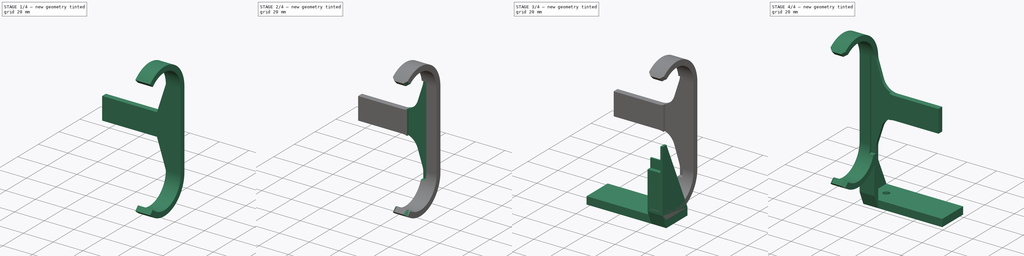
[diagram: build sequence overview — one tinted view per stage of 4, left to right]
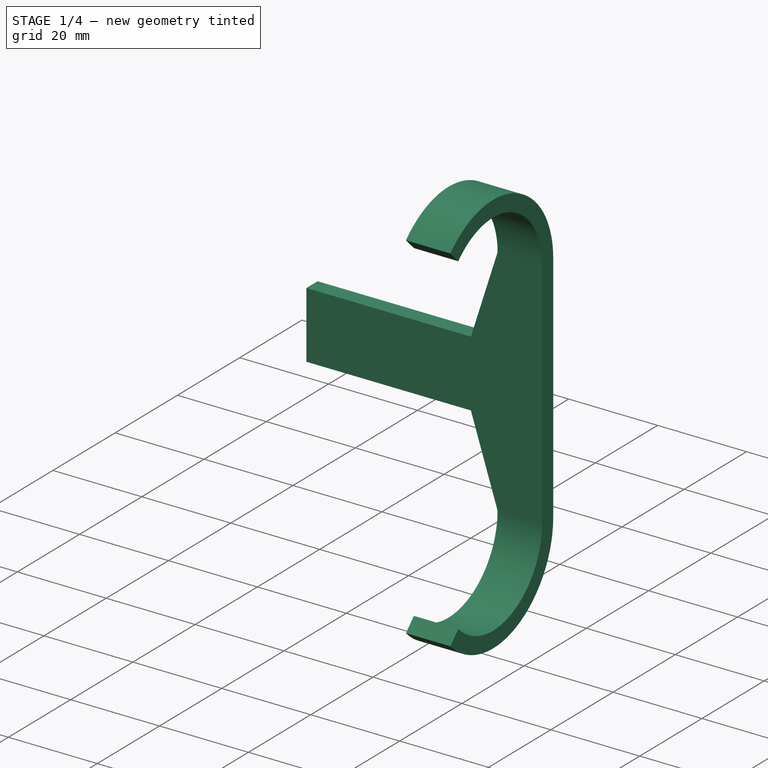
[diagram: stage 1 of 4 — iso view after this stage's code; geometry added in this stage tinted green]
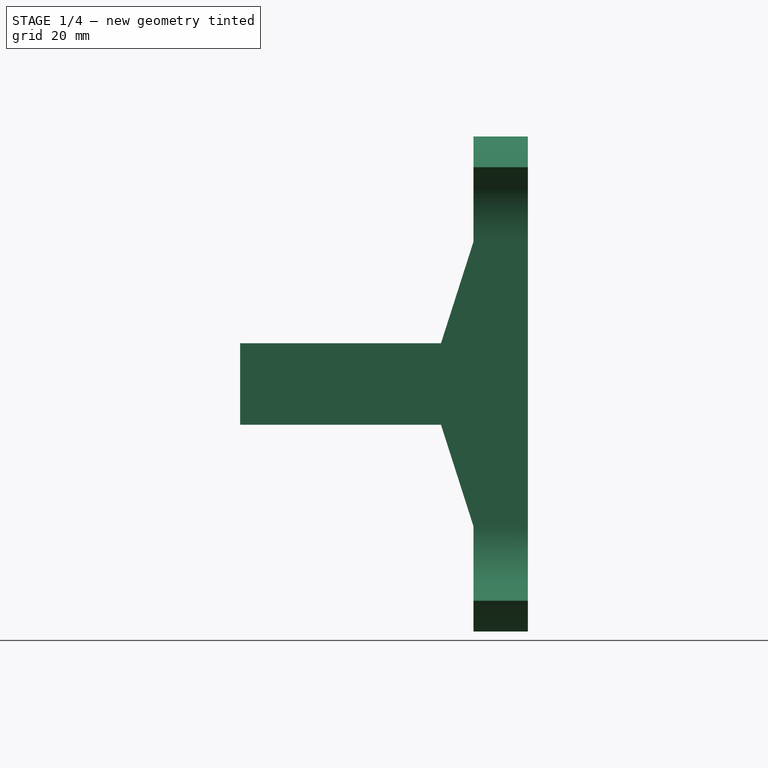
[diagram: stage 1 of 4 — front view after this stage's code; geometry added in this stage tinted green]
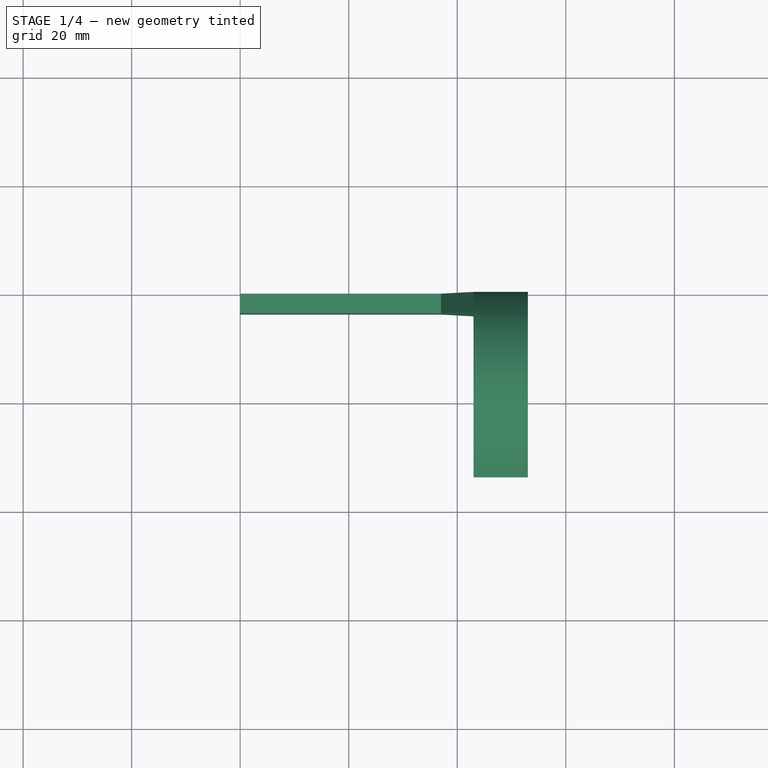
[diagram: stage 1 of 4 — top view after this stage's code; geometry added in this stage tinted green]
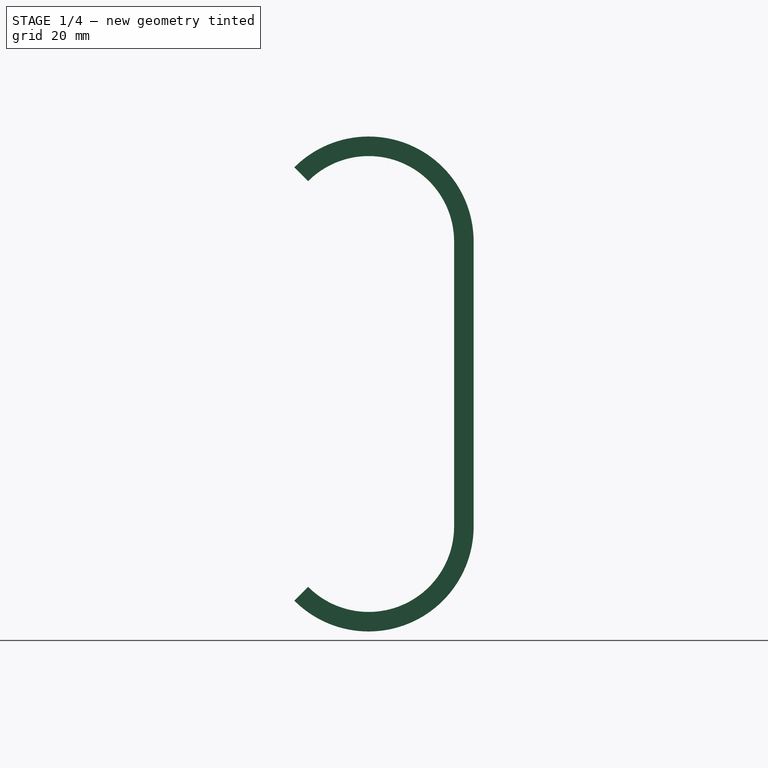
[diagram: stage 1 of 4 — right view after this stage's code; geometry added in this stage tinted green]
FCSTD DOCUMENT  (FreeCAD 0.20R29603 (Git))
Label: Travel_Router
License: All rights reserved
LicenseURL: http://en.wikipedia.org/wiki/All_rights_reserved
objects: Sketcher::SketchObject×6, PartDesign::Pad×4, PartDesign::Body×3, PartDesign::Pocket×2, PartDesign::Chamfer×2, PartDesign::Fillet×1, Part::FeaturePython×1, PartDesign::FeatureBase×1, Part::Mirroring×1, App::Part×1
note: 30 computed .brp shape members not serialized (recipe doc carries the construction recipe); baked Part::Feature solids carry a one-line shape summary decoded from their .brp

FEATURE [Sketcher::SketchObject] Sketch
  FullyConstrained = true
  MapMode = 5
  Placement = pos=(0,0,0) rot=(0.57735,0.57735,0.57735;2.0944rad)
  Support = -> [YZ_Plane001]
  sketch-geometry (19):
    g0: LineSegment StartX=-15.75 StartY=19.35 StartZ=0 EndX=15.75 EndY=19.35 EndZ=0
    g1: ArcOfCircle CenterX=0 CenterY=19.35 CenterZ=0 NormalX=0 NormalY=0 NormalZ=1 AngleXU=0 Radius=15.75 StartAngle=3.14159 EndAngle=6.28319
    g2: LineSegment StartX=-15.75 StartY=71.85 StartZ=0 EndX=15.75 EndY=71.85 EndZ=0
    g3: ArcOfCircle CenterX=4e-16 CenterY=71.85 CenterZ=0 NormalX=0 NormalY=0 NormalZ=1 AngleXU=0 Radius=15.75 StartAngle=0 EndAngle=3.14159
    g4: LineSegment StartX=15.75 StartY=71.85 StartZ=0 EndX=15.75 EndY=19.35 EndZ=0
    g5: LineSegment StartX=-15.75 StartY=71.85 StartZ=0 EndX=-15.75 EndY=19.35 EndZ=0
    g6: LineSegment StartX=0 StartY=87.6 StartZ=0 EndX=0 EndY=3.6 EndZ=0
    g7: ArcOfCircle CenterX=4e-16 CenterY=71.85 CenterZ=0 NormalX=0 NormalY=0 NormalZ=1 AngleXU=0 Radius=15.75 StartAngle=-9e-16 EndAngle=2.35619
    g8: ArcOfCircle CenterX=0 CenterY=19.35 CenterZ=0 NormalX=0 NormalY=0 NormalZ=1 AngleXU=0 Radius=15.75 StartAngle=3.92699 EndAngle=6.28319
    g9: LineSegment StartX=15.75 StartY=71.85 StartZ=0 EndX=15.75 EndY=19.35 EndZ=0
    g10: ArcOfCircle CenterX=4e-16 CenterY=71.85 CenterZ=0 NormalX=0 NormalY=0 NormalZ=1 AngleXU=0 Radius=19.35 StartAngle=0 EndAngle=2.35619
    g11: ArcOfCircle CenterX=0 CenterY=19.35 CenterZ=0 NormalX=0 NormalY=0 NormalZ=1 AngleXU=0 Radius=19.35 StartAngle=3.92699 EndAngle=6.28319
    g12: LineSegment StartX=19.35 StartY=71.85 StartZ=0 EndX=19.35 EndY=19.35 EndZ=0
    g13: LineSegment StartX=-11.1369 StartY=82.9869 StartZ=0 EndX=-13.6825 EndY=85.5325 EndZ=0
    g14: LineSegment StartX=-11.1369 StartY=8.21307 StartZ=0 EndX=-13.6825 EndY=5.66748 EndZ=0
    g15: LineSegment StartX=-11.1369 StartY=8.21307 StartZ=0 EndX=0 EndY=19.35 EndZ=0
    g16: LineSegment StartX=4e-16 StartY=71.85 StartZ=0 EndX=-11.1369 EndY=82.9869 EndZ=0
    g17: LineSegment StartX=15.75 StartY=71.85 StartZ=0 EndX=19.35 EndY=71.85 EndZ=0
    g18: LineSegment StartX=15.75 StartY=19.35 StartZ=0 EndX=19.35 EndY=19.35 EndZ=0
  constraints (52):
    c: Horizontal(g0)
    c: Distance(g0) = 31.5
    c: PointOnObject(g1,g0)
    c: Coincident(g1,g0)
    c: Coincident(g1,g0)
    c: PointOnObject(g1,g-2)
    c: Horizontal(g2)
    c: PointOnObject(g3,g2)
    c: Coincident(g3,g2)
    c: Coincident(g3,g2)
    c: Coincident(g4,g3)
    c: Coincident(g4,g1)
    c: Vertical(g4)
    c: Coincident(g5,g3)
    c: Coincident(g5,g1)
    c: Vertical(g5)
    c: PointOnObject(g6,g3)
    c: PointOnObject(g6,g1)
    c: Vertical(g6)
    c: PointOnObject(g1,g6)
    c: Distance(g6) = 84
    c: Coincident(g7,g3)
    c: Coincident(g7,g2)
    c: Coincident(g8,g1)
    c: Coincident(g8,g0)
    c: Coincident(g9,g7)
    c: Coincident(g9,g8)
    c: Coincident(g10,g7)
    c: Coincident(g11,g8)
    c: Coincident(g12,g10)
    c: Coincident(g12,g11)
    c: Vertical(g12)
    c: Coincident(g13,g7)
    c: Coincident(g13,g10)
    c: Coincident(g14,g8)
    c: Coincident(g14,g11)
    c: Coincident(g15,g8)
    c: Coincident(g15,g8)
    c: Coincident(g16,g7)
    c: Coincident(g16,g7)
    c: Parallel(g16,g13)
    c: Parallel(g15,g14)
    c: Coincident(g17,g7)
    c: Coincident(g17,g10)
    c: Coincident(g18,g8)
    c: Coincident(g18,g11)
    c: Horizontal(g18)
    c: Horizontal(g17)
    c: Angle(g16,g6) = 2.35619
    c: Angle(g6,g15) = 2.35619
    c: Distance(g17) = 3.6
    c: PointOnObject(g-1,g11)
FEATURE [PartDesign::Pad] Pad
  Direction = (1,-2e-16,3e-16)
  Length = 53
  Length2 = 10
  Placement = pos=(0,0,0) rot=(0.57735,0.57735,0.57735;2.0944rad)
  Profile = -> Sketch
  ReferenceAxis = -> Sketch [N_Axis]
  Type = 0
FEATURE [Sketcher::SketchObject] Sketch001
  FullyConstrained = true
  MapMode = 5
  Placement = pos=(0,0,0) rot=(1,0,0;1.5708rad)
  Support = -> [XZ_Plane001]
  expr: Constraints[24] = 84 + 2 * 3.6
  sketch-geometry (9):
    g0: LineSegment StartX=0 StartY=38.1 StartZ=0 EndX=0 EndY=0 EndZ=0
    g1: LineSegment StartX=0 StartY=0 StartZ=0 EndX=43 EndY=0 EndZ=0
    g2: LineSegment StartX=43 StartY=0 StartZ=0 EndX=43 EndY=38.1 EndZ=0
    g3: LineSegment StartX=43 StartY=38.1 StartZ=0 EndX=0 EndY=38.1 EndZ=0
    g4: LineSegment StartX=0 StartY=53.1 StartZ=0 EndX=43 EndY=53.1 EndZ=0
    g5: LineSegment StartX=43 StartY=53.1 StartZ=0 EndX=43 EndY=91.2 EndZ=0
    g6: LineSegment StartX=43 StartY=91.2 StartZ=0 EndX=0 EndY=91.2 EndZ=0
    g7: LineSegment StartX=0 StartY=91.2 StartZ=0 EndX=0 EndY=53.1 EndZ=0
    g8: LineSegment StartX=43 StartY=53.1 StartZ=0 EndX=43 EndY=38.1 EndZ=0
  constraints (25):
    c: Vertical(g0)
    c: Coincident(g1,g0)
    c: Horizontal(g1)
    c: Coincident(g2,g1)
    c: Vertical(g2)
    c: Coincident(g3,g2)
    c: Coincident(g3,g0)
    c: Horizontal(g3)
    c: Distance(g1) = 43
    c: Coincident(g0,g-1)
    c: Coincident(g4,g5)
    c: Coincident(g5,g6)
    c: Coincident(g6,g7)
    c: Coincident(g7,g4)
    c: Horizontal(g4)
    c: Horizontal(g6)
    c: Vertical(g5)
    c: Vertical(g7)
    c: PointOnObject(g4,g-2)
    c: Coincident(g8,g4)
    c: Coincident(g8,g2)
    c: Vertical(g8)
    c: Equal(g5,g2)
    c: Distance(g8) = 15
    c: DistanceY(g0,g6) = 91.2
FEATURE [PartDesign::Pocket] Pocket
  BaseFeature = -> Pad
  Direction = (0,1,2e-16)
  Length = 5
  Length2 = 5
  Midplane = true
  Placement = pos=(0,0,0) rot=(0.57735,0.57735,0.57735;2.0944rad)
  Profile = -> Sketch001
  ReferenceAxis = -> Sketch001 [N_Axis]
  Type = 1
FEATURE [PartDesign::Chamfer] Chamfer
  Angle = 45
  Base = -> Pocket [Edge35,Edge8]
  BaseFeature = -> Pocket
  ChamferType = 1
  FlipDirection = false
  Placement = pos=(0,0,0) rot=(0.57735,0.57735,0.57735;2.0944rad)
  Size = 18.75
  Size2 = 6
  SupportTransform = false
  UseAllEdges = false
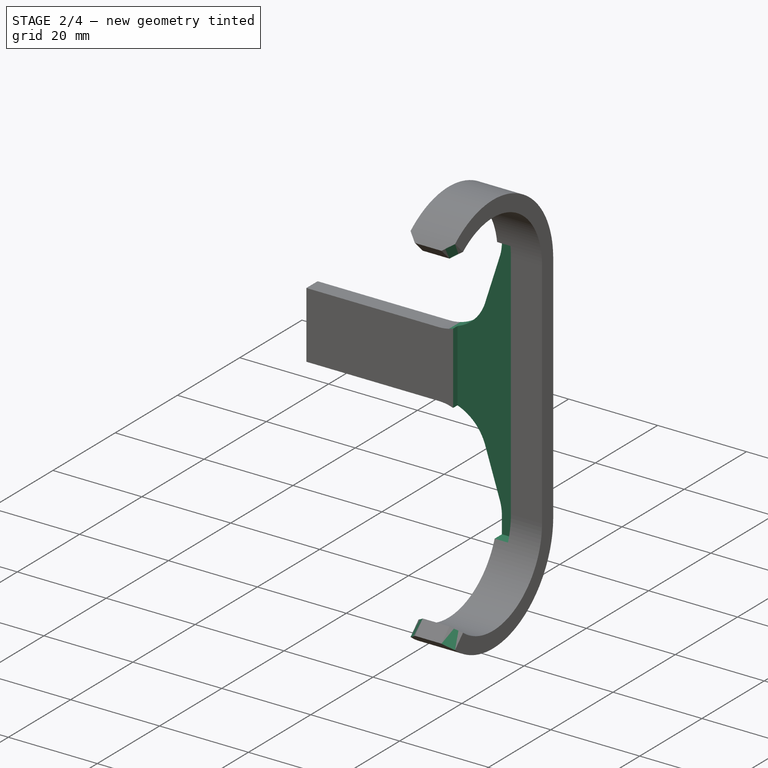
[diagram: stage 2 of 4 — iso view after this stage's code; geometry added in this stage tinted green]
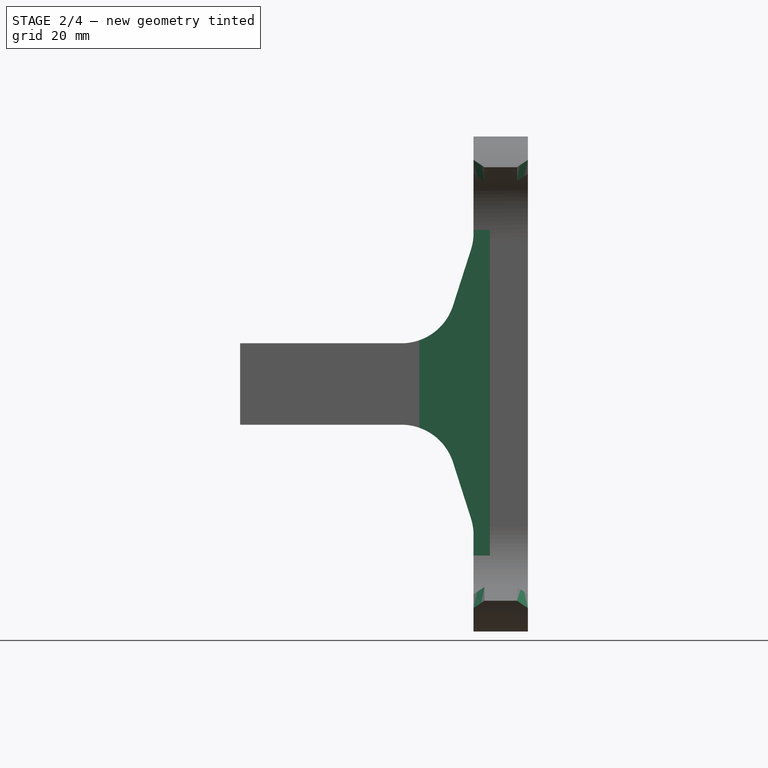
[diagram: stage 2 of 4 — front view after this stage's code; geometry added in this stage tinted green]
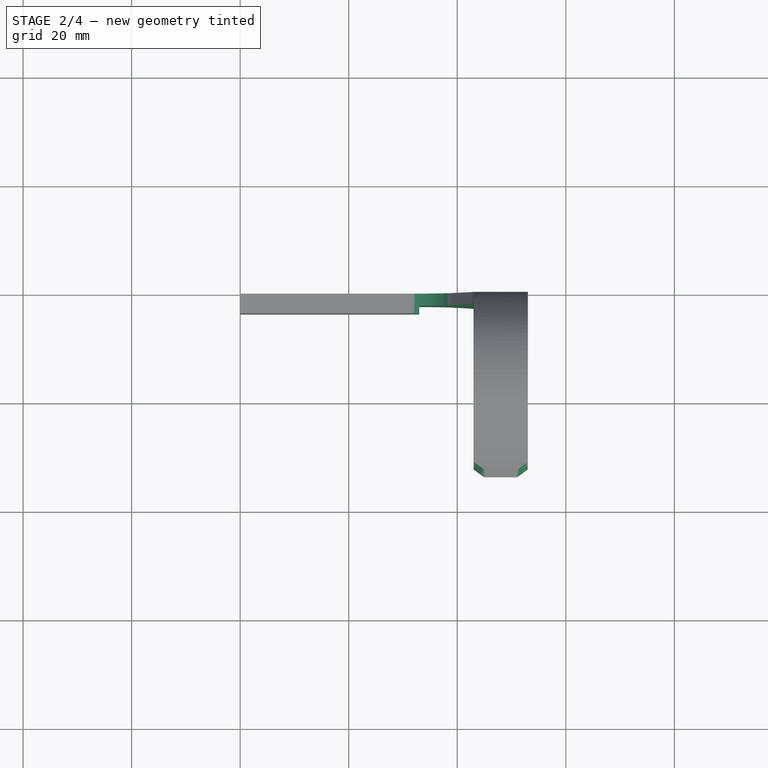
[diagram: stage 2 of 4 — top view after this stage's code; geometry added in this stage tinted green]
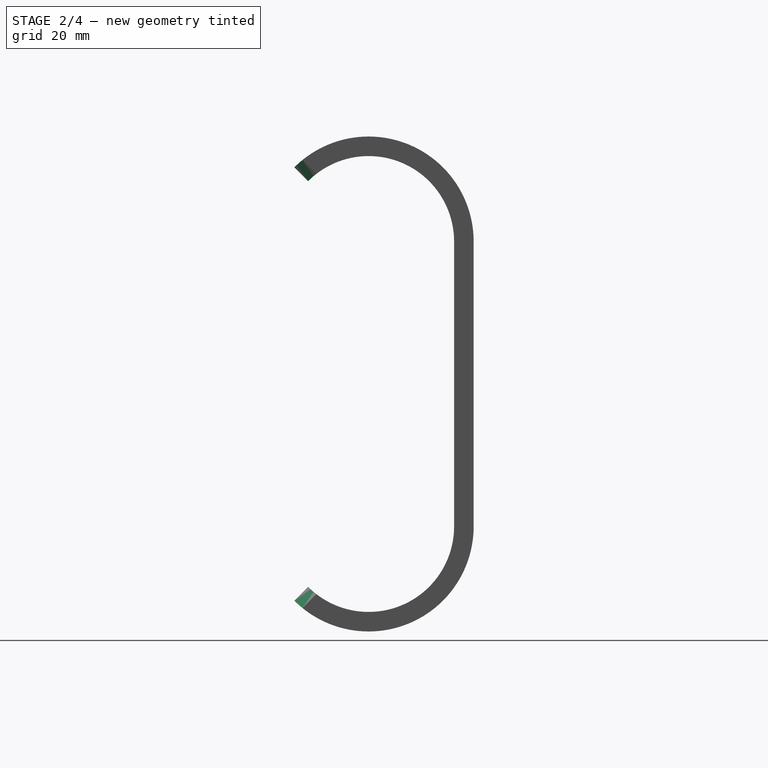
[diagram: stage 2 of 4 — right view after this stage's code; geometry added in this stage tinted green]
FEATURE [PartDesign::Fillet] Fillet
  Base = -> Chamfer [Edge7,Edge1,Edge32,Edge34]
  BaseFeature = -> Chamfer
  Placement = pos=(0,0,0) rot=(0.57735,0.57735,0.57735;2.0944rad)
  Radius = 10
  SupportTransform = false
  UseAllEdges = false
FEATURE [Sketcher::SketchObject] Sketch002
  FullyConstrained = false
  MapMode = 5
  Placement = pos=(7e-15,15.75,-1e-14) rot=(0.57735,0.57735,-0.57735;2.0944rad)
  sketch-geometry (8):
    g0: LineSegment StartX=-74 StartY=46 StartZ=0 EndX=-14 EndY=46 EndZ=0
    g1: LineSegment StartX=-14 StartY=46 StartZ=0 EndX=-14 EndY=33 EndZ=0
    g2: LineSegment StartX=-14 StartY=33 StartZ=0 EndX=-74 EndY=33 EndZ=0
    g3: LineSegment StartX=-74 StartY=33 StartZ=0 EndX=-74 EndY=46 EndZ=0
    g4: LineSegment StartX=-70.25 StartY=53 StartZ=0 EndX=-70.25 EndY=46 EndZ=0
    g5: LineSegment StartX=-17.75 StartY=53 StartZ=0 EndX=-17.75 EndY=46 EndZ=0
    g6: LineSegment StartX=-74 StartY=46 StartZ=0 EndX=-70.25 EndY=53 EndZ=0
    g7: LineSegment StartX=-17.75 StartY=53 StartZ=0 EndX=-14 EndY=46 EndZ=0
  constraints (20):
    c: Coincident(g0,g1)
    c: Coincident(g1,g2)
    c: Coincident(g2,g3)
    c: Coincident(g3,g0)
    c: Horizontal(g0)
    c: Horizontal(g2)
    c: Vertical(g1)
    c: Vertical(g3)
    c: Distance(g3) = 13
    c: Distance(g0) = 60
    c: PointOnObject(g4,g0)
    c: Vertical(g4)
    c: PointOnObject(g5,g0)
    c: Vertical(g5)
    c: Distance(g4) = 7
    c: Coincident(g6,g0)
    c: Coincident(g6,g4)
    c: Coincident(g7,g5)
    c: Coincident(g7,g0)
    c: Equal(g6,g7)
FEATURE [PartDesign::Pocket] Pocket001
  BaseFeature = -> Fillet
  Direction = (1e-15,1,-1e-16)
  Length = 2.8
  Length2 = 5
  Midplane = true
  Placement = pos=(0,0,0) rot=(0.57735,0.57735,0.57735;2.0944rad)
  Profile = -> Sketch002
  ReferenceAxis = -> Sketch002 [N_Axis]
  Type = 0
FEATURE [PartDesign::Body] Body001
  Group = -> [Sketch004,Pad001,Sketch005,Pad002,Sketch006,Pad003]
  Origin = -> Origin002
  Placement = pos=(0,29.35,0) rot=(0,0.707107,0.707107;0rad)
  Tip = -> Pad003
FEATURE [PartDesign::Chamfer] Chamfer001
  Angle = 45
  Base = -> Pocket001 [Edge6,Edge27,Edge37,Edge65]
  BaseFeature = -> Pocket001
  ChamferType = 0
  FlipDirection = false
  Placement = pos=(0,0,0) rot=(0.57735,0.57735,0.57735;2.0944rad)
  Size = 2
  Size2 = 1
  SupportTransform = false
  UseAllEdges = false
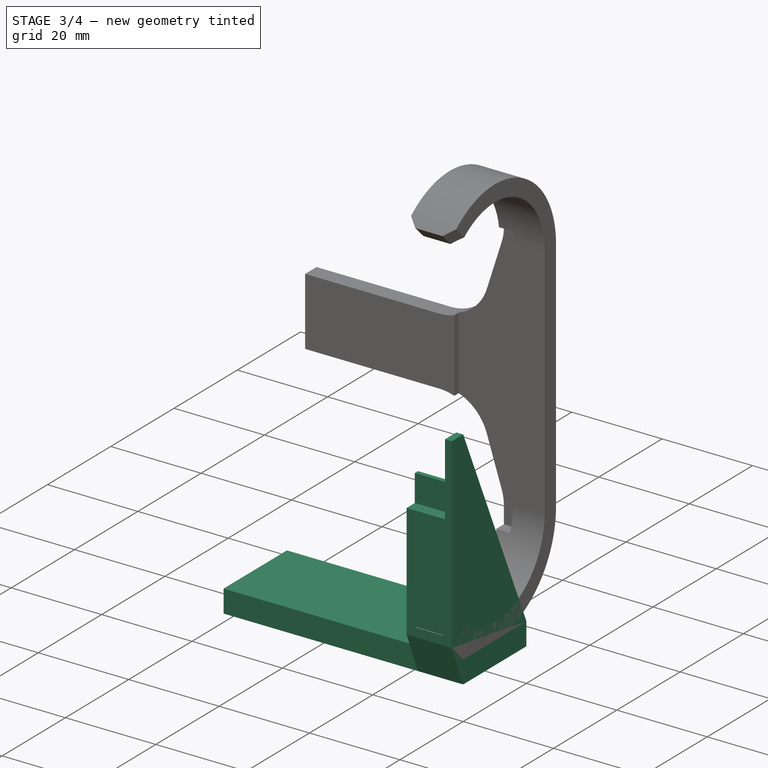
[diagram: stage 3 of 4 — iso view after this stage's code; geometry added in this stage tinted green]
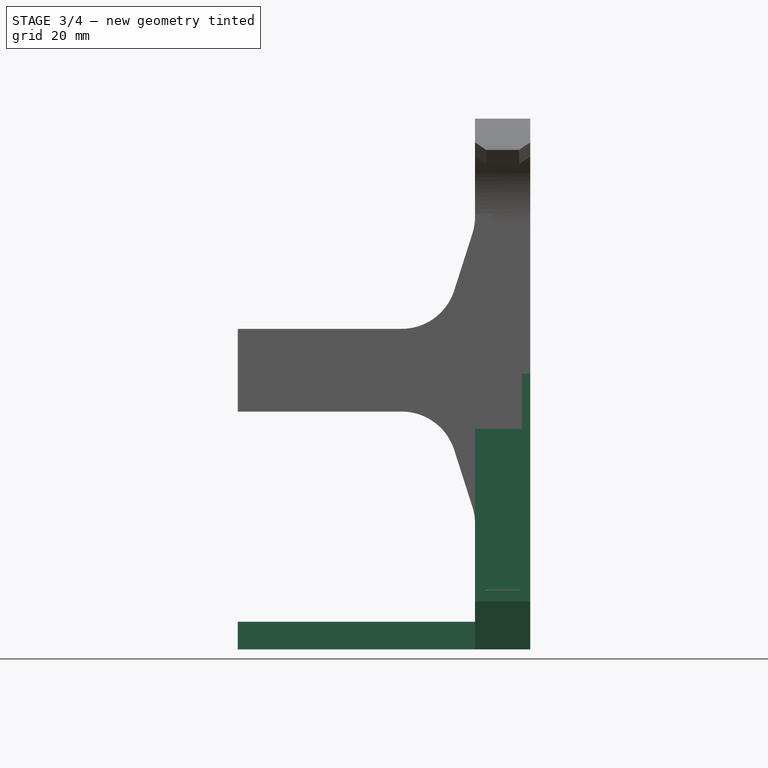
[diagram: stage 3 of 4 — front view after this stage's code; geometry added in this stage tinted green]
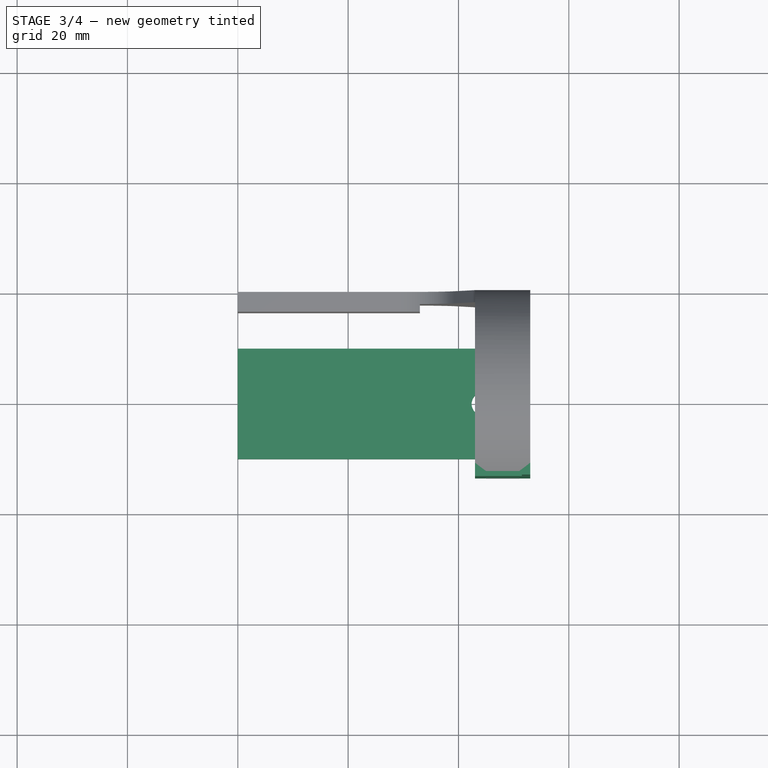
[diagram: stage 3 of 4 — top view after this stage's code; geometry added in this stage tinted green]
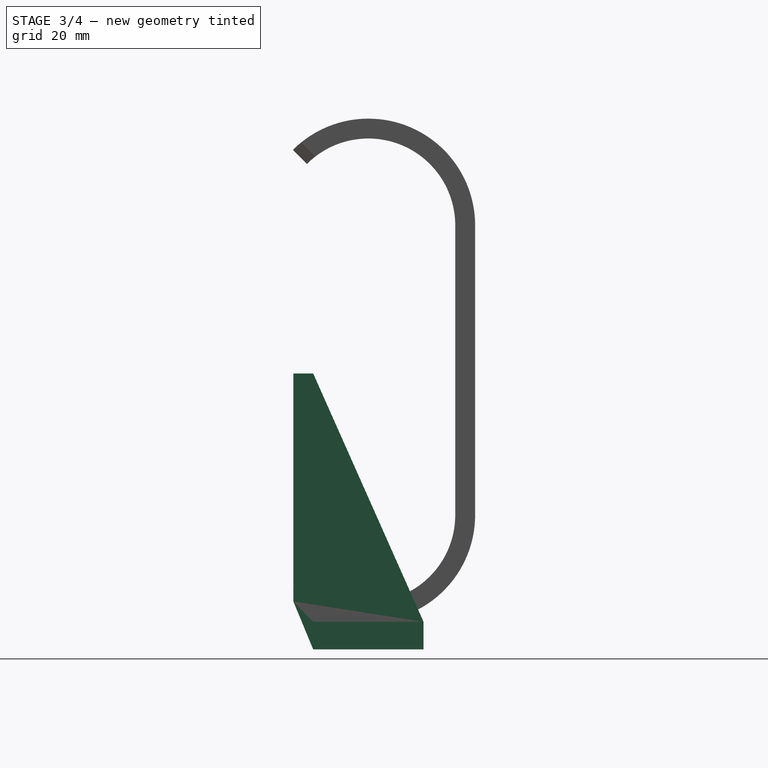
[diagram: stage 3 of 4 — right view after this stage's code; geometry added in this stage tinted green]
FEATURE [Sketcher::SketchObject] Sketch004
  FullyConstrained = true
  MapMode = 5
  Support = -> [XY_Plane002]
  expr: Constraints[21] = 43 + 10
  sketch-geometry (8):
    g0: LineSegment StartX=0 StartY=0 StartZ=0 EndX=0 EndY=10 EndZ=0
    g1: LineSegment StartX=0 StartY=10 StartZ=0 EndX=53 EndY=10 EndZ=0
    g2: LineSegment StartX=53 StartY=10 StartZ=0 EndX=53 EndY=-10 EndZ=0
    g3: LineSegment StartX=53 StartY=-10 StartZ=0 EndX=0 EndY=-10 EndZ=0
    g4: LineSegment StartX=0 StartY=-10 StartZ=0 EndX=0 EndY=0 EndZ=0
    g5: LineSegment StartX=0 StartY=0 StartZ=0 EndX=44.5 EndY=0 EndZ=0
    g6: Circle CenterX=44.5 CenterY=0 CenterZ=0 NormalX=0 NormalY=0 NormalZ=1 AngleXU=0 Radius=2.125
    g7: LineSegment StartX=44.5 StartY=0 StartZ=0 EndX=53 EndY=0 EndZ=0
  constraints (22):
    c: Coincident(g-1,g0)
    c: PointOnObject(g0,g-2)
    c: Coincident(g0,g1)
    c: Horizontal(g1)
    c: Coincident(g1,g2)
    c: Vertical(g2)
    c: Coincident(g2,g3)
    c: PointOnObject(g3,g-2)
    c: Horizontal(g3)
    c: Coincident(g3,g4)
    c: Coincident(g4,g0)
    c: Equal(g0,g4)
    c: Coincident(g5,g0)
    c: PointOnObject(g5,g-1)
    c: Coincident(g6,g5)
    c: Distance(g5) = 44.5
    c: Diameter(g6) = 4.25
    c: Distance(g2) = 20
    c: Coincident(g7,g6)
    c: PointOnObject(g7,g2)
    c: Horizontal(g7)
    c: DistanceX(g0,g1) = 53
FEATURE [PartDesign::Pad] Pad001
  Direction = (0,0,1)
  Length = 5
  Length2 = 10
  Profile = -> Sketch004
  ReferenceAxis = -> Sketch004 [N_Axis]
  Reversed = true
  Type = 0
FEATURE [Sketcher::SketchObject] Sketch005
  ExternalGeometry = -> [Pad001]
  FullyConstrained = true
  MapMode = 5
  Placement = pos=(53,0,0) rot=(0.57735,0.57735,0.57735;2.0944rad)
  Support = -> [Pad001]
  sketch-geometry (7):
    g0: LineSegment StartX=-10 StartY=0 StartZ=0 EndX=-10 EndY=45 EndZ=0
    g1: LineSegment StartX=-10 StartY=45 StartZ=0 EndX=10 EndY=0 EndZ=0
    g2: LineSegment StartX=10 StartY=0 StartZ=0 EndX=-10 EndY=0 EndZ=0
    g3: LineSegment StartX=-10 StartY=45 StartZ=0 EndX=-13.6 EndY=45 EndZ=0
    g4: LineSegment StartX=-10 StartY=0 StartZ=0 EndX=-10 EndY=-5 EndZ=0
    g5: LineSegment StartX=-10 StartY=-5 StartZ=0 EndX=-13.6 EndY=3.69117 EndZ=0
    g6: LineSegment StartX=-13.6 StartY=45 StartZ=0 EndX=-13.6 EndY=3.69117 EndZ=0
  constraints (18):
    c: Coincident(g0,g-3)
    c: Vertical(g0)
    c: Coincident(g1,g0)
    c: Coincident(g1,g-3)
    c: Coincident(g2,g1)
    c: Coincident(g2,g0)
    c: Distance(g0) = 45
    c: Coincident(g3,g1)
    c: Horizontal(g3)
    c: Distance(g3) = 3.6
    c: Coincident(g4,g2)
    c: Vertical(g4)
    c: Coincident(g5,g4)
    c: Distance(g4) = 5
    c: Angle(g4,g5) = 0.392699
    c: Coincident(g6,g3)
    c: Coincident(g6,g5)
    c: Vertical(g6)
FEATURE [PartDesign::Pad] Pad002
  BaseFeature = -> Pad001
  Direction = (1,0,0)
  Length = 1.5
  Length2 = 10
  Profile = -> Sketch005
  ReferenceAxis = -> Sketch005 [N_Axis]
  Reversed = true
  Type = 0
FEATURE [Sketcher::SketchObject] Sketch006
  ExternalGeometry = -> [Pad002]
  FullyConstrained = true
  MapMode = 5
  Placement = pos=(51.5,0,0) rot=(0.57735,-0.57735,-0.57735;2.0944rad)
  Support = -> [Pad002]
  sketch-geometry (6):
    g0: LineSegment StartX=10 StartY=35 StartZ=0 EndX=10 EndY=-5 EndZ=0
    g1: LineSegment StartX=10 StartY=-5 StartZ=0 EndX=13.6 EndY=3.69117 EndZ=0
    g2: LineSegment StartX=13.6 StartY=29 StartZ=0 EndX=13.6 EndY=3.69117 EndZ=0
    g3: LineSegment StartX=13.6 StartY=29 StartZ=0 EndX=11 EndY=29 EndZ=0
    g4: LineSegment StartX=11 StartY=29 StartZ=0 EndX=11 EndY=35 EndZ=0
    g5: LineSegment StartX=11 StartY=35 StartZ=0 EndX=10 EndY=35 EndZ=0
  constraints (16):
    c: Coincident(g0,g-4)
    c: Vertical(g0)
    c: Coincident(g1,g0)
    c: Coincident(g1,g-4)
    c: PointOnObject(g2,g-3)
    c: Coincident(g2,g1)
    c: DistanceY(g2,g-3) = 16
    c: Coincident(g3,g2)
    c: Horizontal(g3)
    c: Coincident(g4,g3)
    c: Vertical(g4)
    c: Coincident(g5,g4)
    c: Horizontal(g5)
    c: Coincident(g0,g5)
    c: Distance(g5) = 1
    c: Distance(g4) = 6
FEATURE [PartDesign::Pad] Pad003
  BaseFeature = -> Pad002
  Direction = (-1,0,0)
  Length = 8.5
  Length2 = 10
  Profile = -> Sketch006
  ReferenceAxis = -> Sketch006 [N_Axis]
  Type = 0
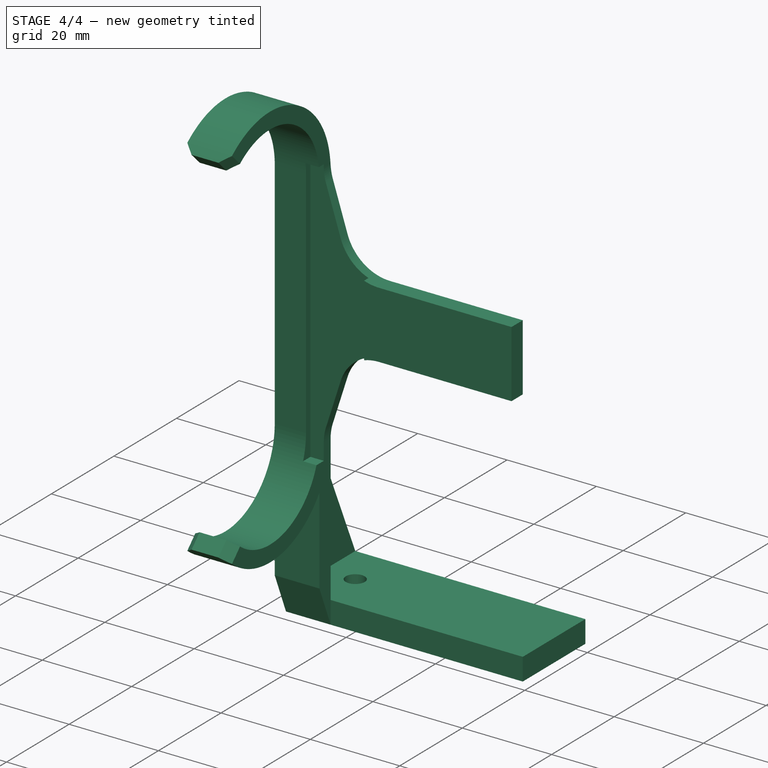
[diagram: stage 4 of 4 — iso view after this stage's code; geometry added in this stage tinted green]
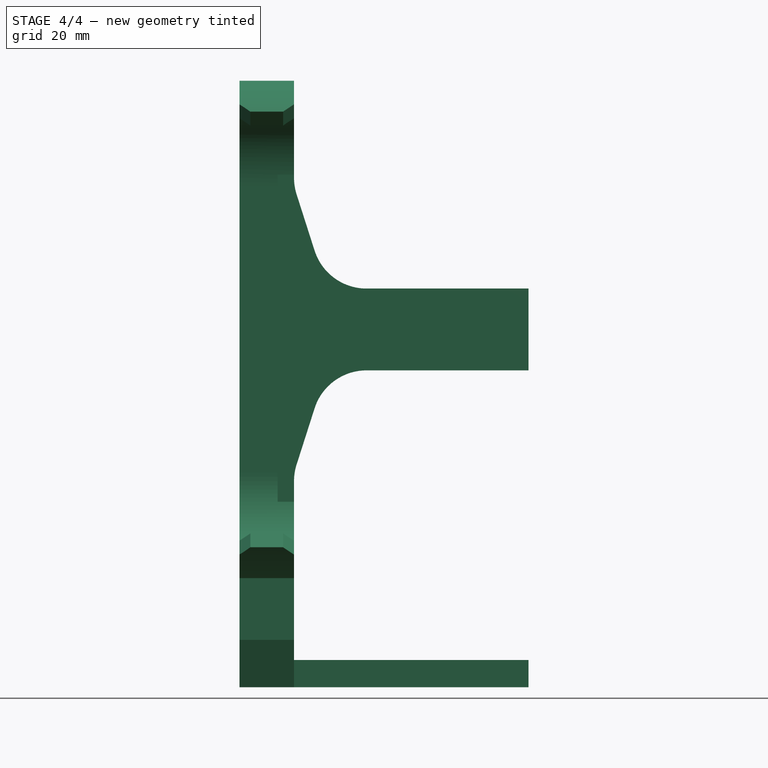
[diagram: stage 4 of 4 — front view after this stage's code; geometry added in this stage tinted green]
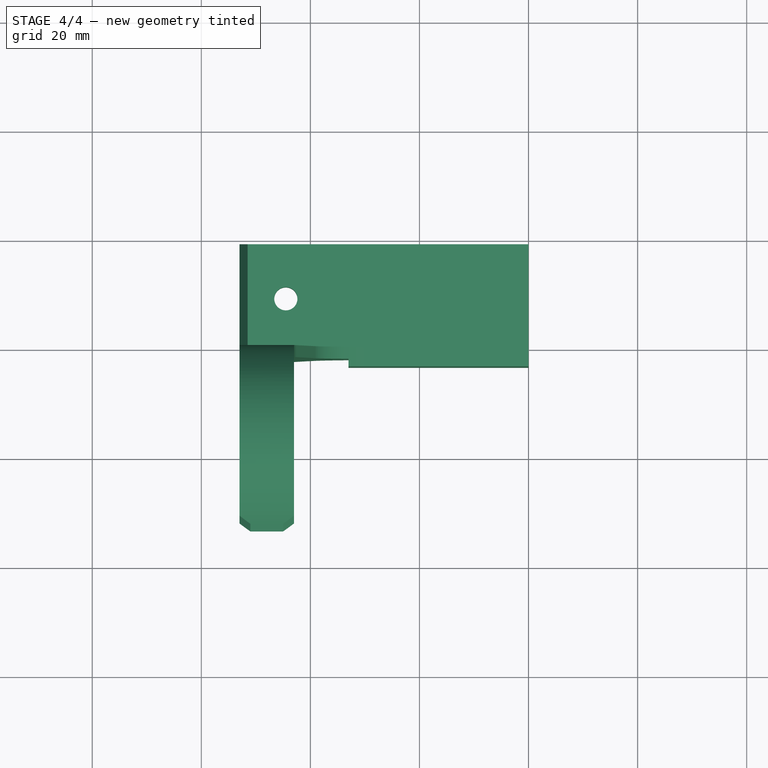
[diagram: stage 4 of 4 — top view after this stage's code; geometry added in this stage tinted green]
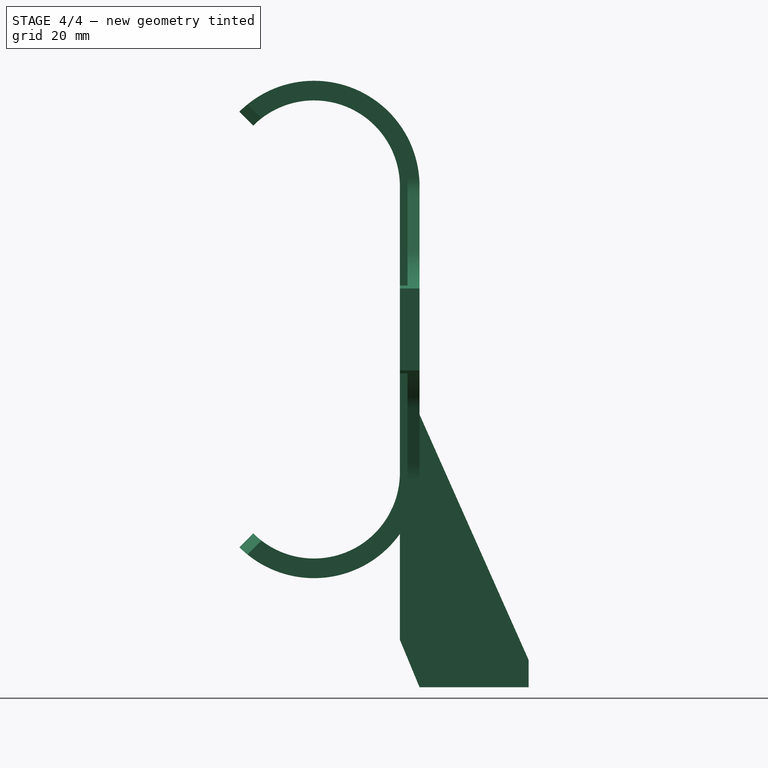
[diagram: stage 4 of 4 — right view after this stage's code; geometry added in this stage tinted green]
FEATURE [PartDesign::Body] Body
  Group = -> [Sketch,Pad,Sketch001,Pocket,Chamfer,Fillet,Sketch002,Pocket001,Chamfer001]
  Origin = -> Origin001
  Placement = pos=(0,0,15) rot=(0,0,1;0rad)
  Tip = -> Chamfer001
FEATURE [Part::FeaturePython] Connect  # WARN: FeaturePython — macro-defined, semantics opaque (R4)
  Objects = -> [Body,Body001]
  Tolerance = 0
FEATURE [PartDesign::FeatureBase] Clone
  BaseFeature = -> Connect
FEATURE [PartDesign::Body] Body002
  BaseFeature = -> Connect
  Group = -> [Clone]
  Origin = -> Origin003
  Tip = -> Clone
FEATURE [Part::Mirroring] Part__Mirroring  label="Body002 (Mirror #1)"
  Base = (0,0,0)
  Normal = (1,0,0)
  Source = -> Body002
FEATURE [App::Part] Part
  Group = -> [Body,Body001,Connect,Body002,Part__Mirroring]
  Origin = -> Origin
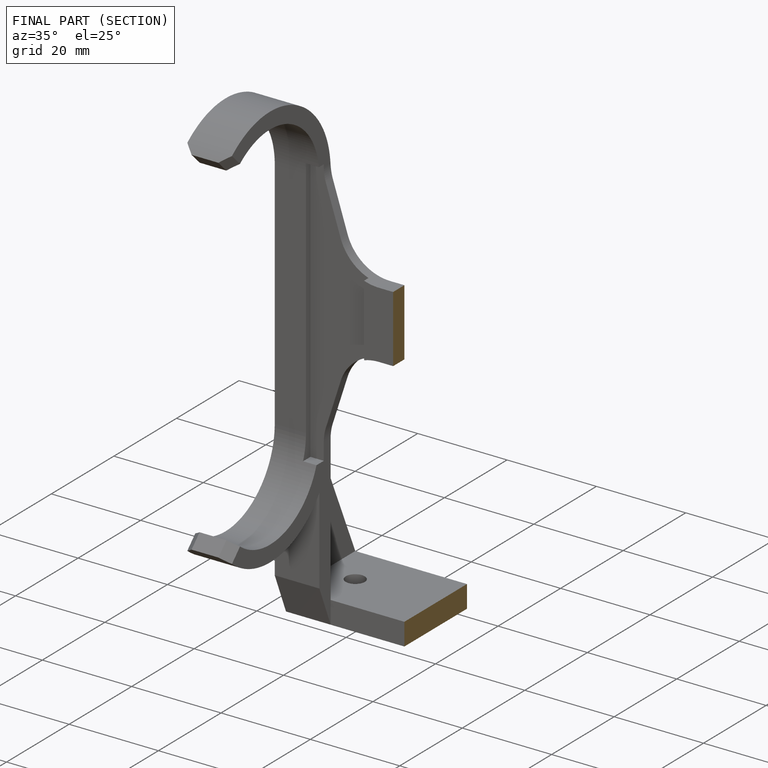
[diagram: finished part — half-section view (interior)]
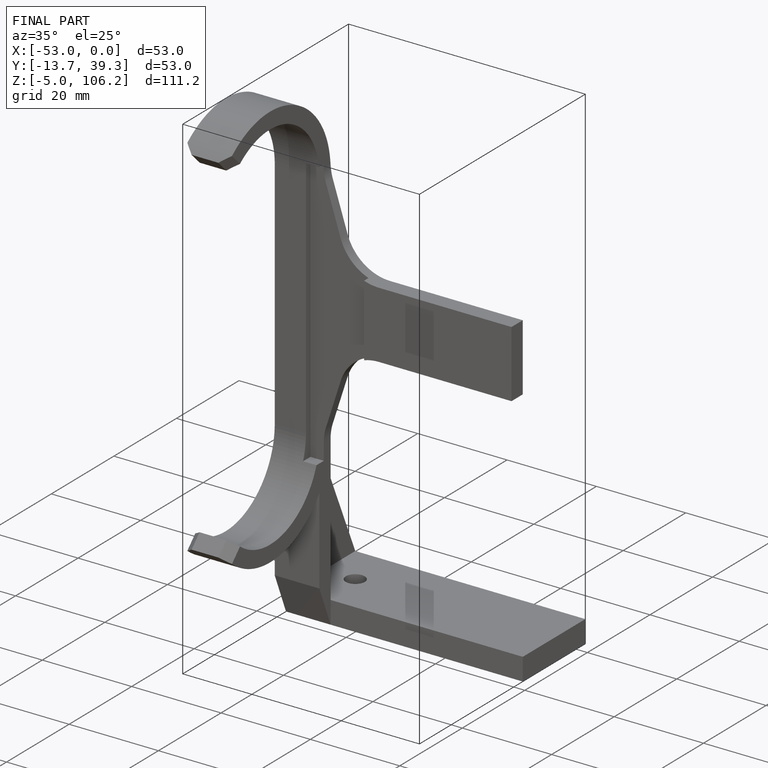
[diagram: finished part — iso view with bounding-box wireframe]
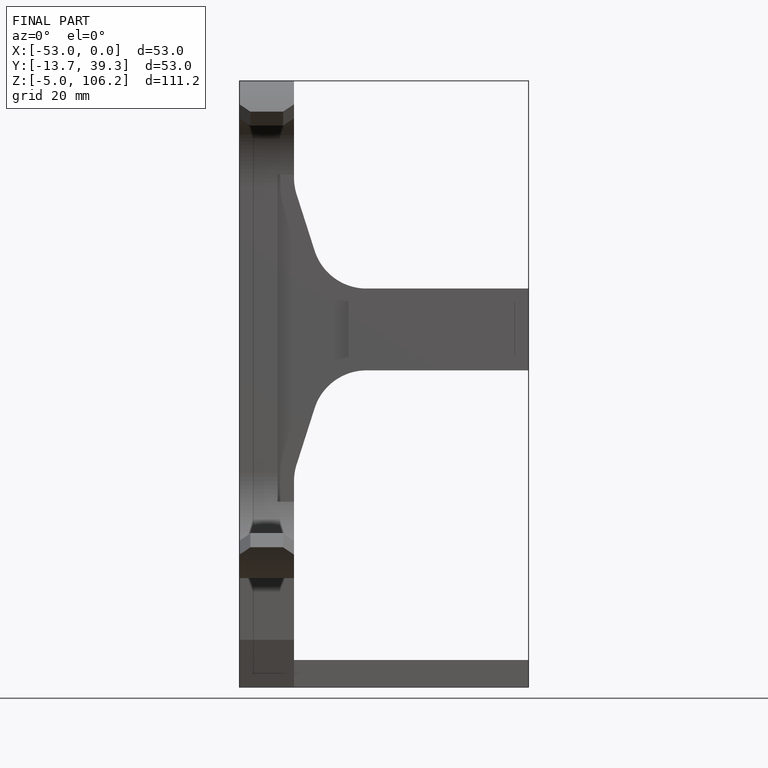
[diagram: finished part — front view with bounding-box wireframe]
